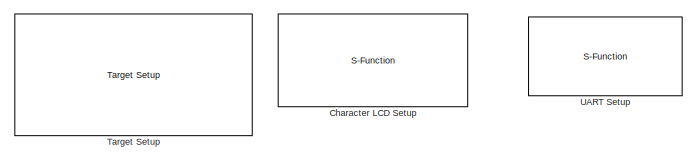
[diagram: root canvas - part 1/5, top center region]
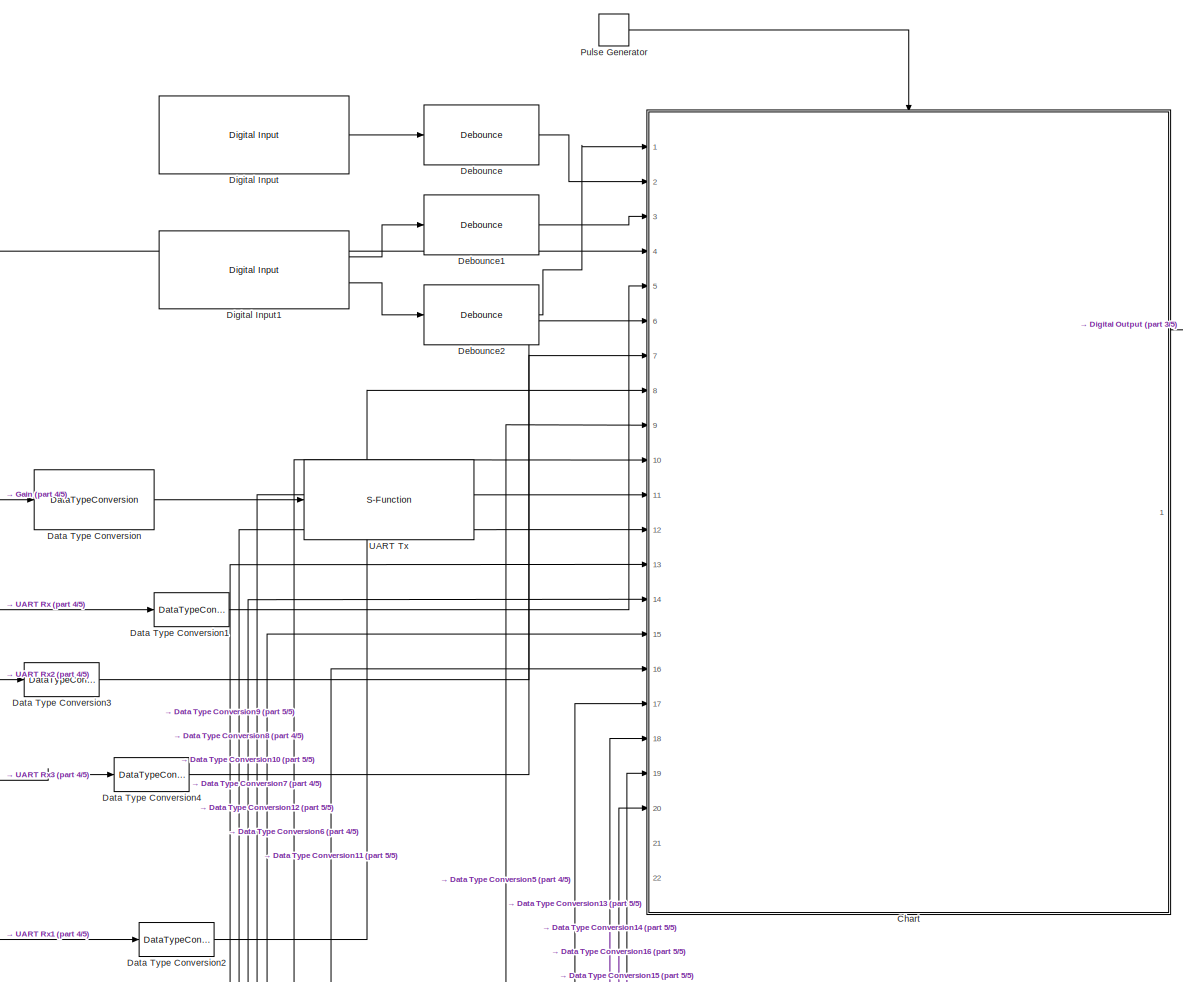
[diagram: root canvas - part 2/5, top center region]
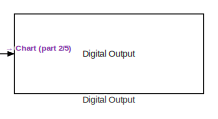
[diagram: root canvas - part 3/5, top right region]
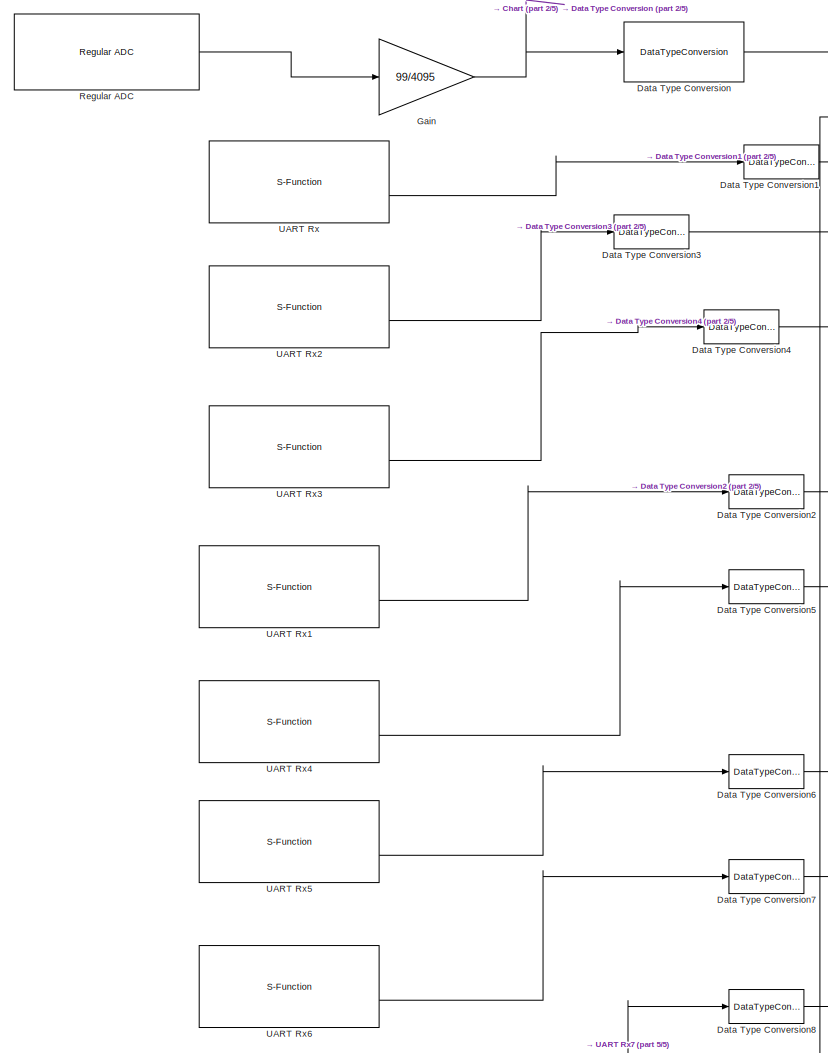
[diagram: root canvas - part 4/5, middle left region]
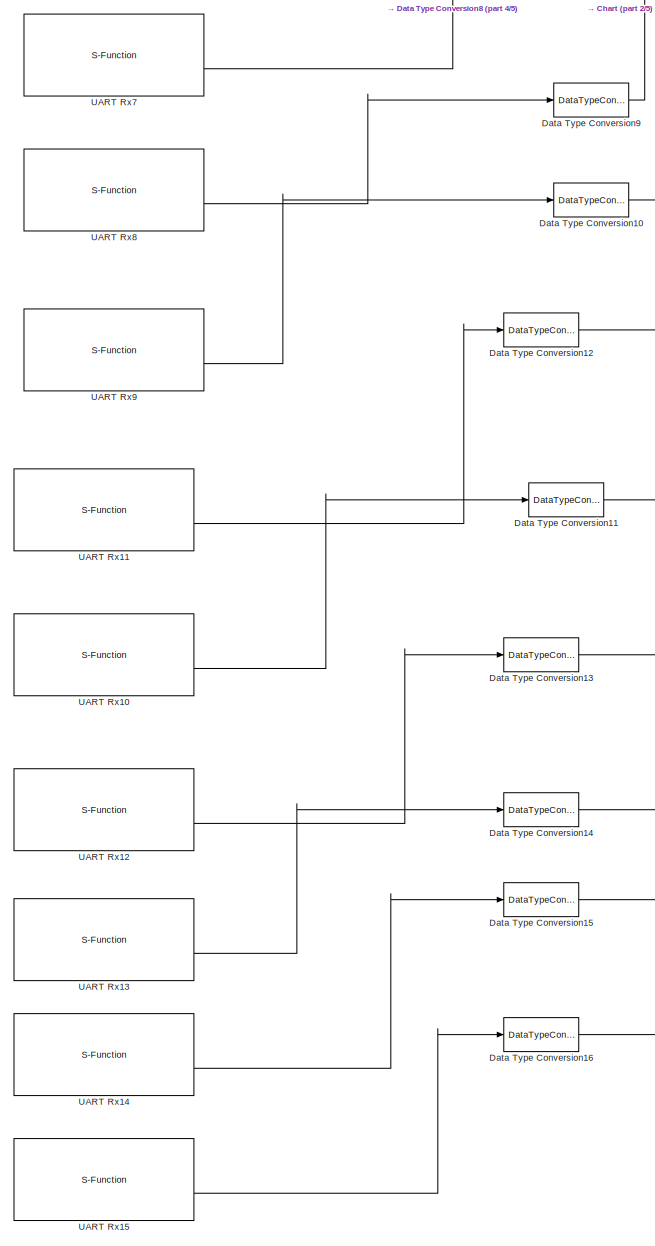
[diagram: root canvas - part 5/5, bottom left region]
MODEL slx_6292fe6bb9c7
KIND model
CONFIG AbsTol = auto
CONFIG EnableMultiTasking = off
CONFIG FixedStep = auto
CONFIG MaxStep = auto
CONFIG MinStep = auto
CONFIG PreLoadFcn = waijung.modelPreload; % Required for working with Waijung Blockset. Do not remove.
CONFIG RelTol = 1e-3
CONFIG SampleTimeConstraint = Unconstrained
CONFIG Solver = FixedStepDiscrete
CONFIG SolverName = FixedStepDiscrete
CONFIG StartTime = 0.0
CONFIG StopTime = inf
BLOCK [S-Function] Character LCD Setup
  EnableBusSupport = off
  FunctionName = amg_clcd
  Parameters = module,configuration,inputtypearray,outputtypearray,confstr,sampletime,sampletimestr,blockid
  Ports = []
  SFcnIsStateOwnerBlock = off
  SFunctionDeploymentMode = off
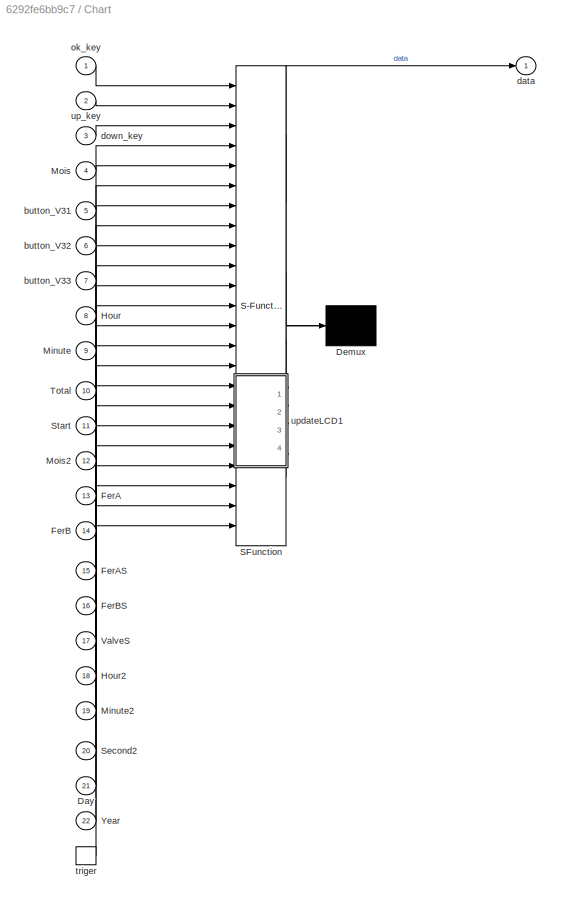
BLOCK [SubSystem] Chart
  ErrorFcn = Stateflow.Translate.translate
  PermitHierarchicalResolution = ExplicitOnly
  Ports = [22, 1, 0, 1]
  RequestExecContextInheritance = off
  SFBlockType = Chart
  TreatAsAtomicUnit = on
  Variant = off
BLOCK [Demux] Chart/ Demux 
  Outputs = 1
  Ports = [1, 1]
BLOCK [S-Function] Chart/ SFunction 
  EnableBusSupport = on
  FunctionName = sf_sfun
  PortCounts = [23 6]
  Ports = [23, 6]
  SFcnIsStateOwnerBlock = off
  SFunctionDeploymentMode = off
  Tag = Stateflow S-Function Project2 1
BLOCK [Inport] Chart/Day
  IconDisplay = Port number
  Port = 21
BLOCK [Inport] Chart/FerA
  IconDisplay = Port number
  Port = 13
BLOCK [Inport] Chart/FerAS
  IconDisplay = Port number
  Port = 15
BLOCK [Inport] Chart/FerB
  IconDisplay = Port number
  Port = 14
BLOCK [Inport] Chart/FerBS
  IconDisplay = Port number
  Port = 16
BLOCK [Inport] Chart/Hour
  IconDisplay = Port number
  Port = 8
BLOCK [Inport] Chart/Hour2
  IconDisplay = Port number
  Port = 18
BLOCK [Inport] Chart/Minute
  IconDisplay = Port number
  Port = 9
BLOCK [Inport] Chart/Minute2
  IconDisplay = Port number
  Port = 19
BLOCK [Inport] Chart/Mois
  IconDisplay = Port number
  Port = 4
BLOCK [Inport] Chart/Mois2
  IconDisplay = Port number
  Port = 12
BLOCK [Inport] Chart/Second2
  IconDisplay = Port number
  Port = 20
BLOCK [Inport] Chart/Start
  IconDisplay = Port number
  Port = 11
BLOCK [Inport] Chart/Total
  IconDisplay = Port number
  Port = 10
BLOCK [Inport] Chart/ValveS
  IconDisplay = Port number
  Port = 17
BLOCK [Inport] Chart/Year
  IconDisplay = Port number
  Port = 22
BLOCK [Inport] Chart/button_V31
  IconDisplay = Port number
  Port = 5
BLOCK [Inport] Chart/button_V32
  IconDisplay = Port number
  Port = 6
BLOCK [Inport] Chart/button_V33
  IconDisplay = Port number
  Port = 7
BLOCK [Outport] Chart/data
  IconDisplay = Port number
BLOCK [Inport] Chart/down_key
  IconDisplay = Port number
  Port = 3
BLOCK [Inport] Chart/ok_key
  IconDisplay = Port number
BLOCK [TriggerPort] Chart/triger
  Ports = [0, 1]
  ShowOutputPort = on
  StatesWhenEnabling = held
  VariantControl = (inherit)
BLOCK [Inport] Chart/up_key
  IconDisplay = Port number
  Port = 2
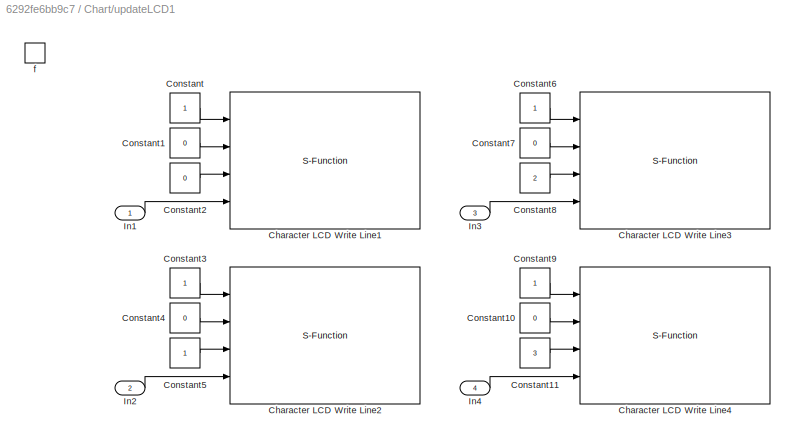
BLOCK [SubSystem] Chart/updateLCD1
  Ports = [4, 0, 0, 1]
  PreDeleteFcn = Stateflow.SLINSF.SimulinkMan.removePreDeleteFcn
  RequestExecContextInheritance = off
  UndoDeleteFcn = Stateflow.SLINSF.SimulinkMan.restorePreDeleteFcn
  Variant = off
BLOCK [S-Function] Chart/updateLCD1/Character LCD Write Line1
  EnableBusSupport = off
  FunctionName = amg_clcd
  Parameters = module,configuration,inputtypearray,outputtypearray,confstr,sampletime,sampletimestr,blockid
  Ports = [4]
  SFcnIsStateOwnerBlock = off
  SFunctionDeploymentMode = off
BLOCK [S-Function] Chart/updateLCD1/Character LCD Write Line2
  EnableBusSupport = off
  FunctionName = amg_clcd
  Parameters = module,configuration,inputtypearray,outputtypearray,confstr,sampletime,sampletimestr,blockid
  Ports = [4]
  SFcnIsStateOwnerBlock = off
  SFunctionDeploymentMode = off
BLOCK [S-Function] Chart/updateLCD1/Character LCD Write Line3
  EnableBusSupport = off
  FunctionName = amg_clcd
  Parameters = module,configuration,inputtypearray,outputtypearray,confstr,sampletime,sampletimestr,blockid
  Ports = [4]
  SFcnIsStateOwnerBlock = off
  SFunctionDeploymentMode = off
BLOCK [S-Function] Chart/updateLCD1/Character LCD Write Line4
  EnableBusSupport = off
  FunctionName = amg_clcd
  Parameters = module,configuration,inputtypearray,outputtypearray,confstr,sampletime,sampletimestr,blockid
  Ports = [4]
  SFcnIsStateOwnerBlock = off
  SFunctionDeploymentMode = off
BLOCK [Constant] Chart/updateLCD1/Constant
BLOCK [Constant] Chart/updateLCD1/Constant1
  Value = 0
BLOCK [Constant] Chart/updateLCD1/Constant10
  Value = 0
BLOCK [Constant] Chart/updateLCD1/Constant11
  Value = 3
BLOCK [Constant] Chart/updateLCD1/Constant2
  Value = 0
BLOCK [Constant] Chart/updateLCD1/Constant3
BLOCK [Constant] Chart/updateLCD1/Constant4
  Value = 0
BLOCK [Constant] Chart/updateLCD1/Constant5
BLOCK [Constant] Chart/updateLCD1/Constant6
BLOCK [Constant] Chart/updateLCD1/Constant7
  Value = 0
BLOCK [Constant] Chart/updateLCD1/Constant8
  Value = 2
BLOCK [Constant] Chart/updateLCD1/Constant9
BLOCK [Inport] Chart/updateLCD1/In1
  IconDisplay = Port number
  OutDataTypeStr = uint8
  PortDimensions = [1 16]
BLOCK [Inport] Chart/updateLCD1/In2
  IconDisplay = Port number
  OutDataTypeStr = uint8
  Port = 2
  PortDimensions = [1 16]
BLOCK [Inport] Chart/updateLCD1/In3
  IconDisplay = Port number
  OutDataTypeStr = uint8
  Port = 3
  PortDimensions = [1 16]
BLOCK [Inport] Chart/updateLCD1/In4
  IconDisplay = Port number
  OutDataTypeStr = uint8
  Port = 4
  PortDimensions = [1 16]
BLOCK [TriggerPort] Chart/updateLCD1/f
  CopyFcn = Stateflow.SLINSF.SimulinkMan.removeBlockPreDeleteFcn
  Ports = []
  PreDeleteFcn = Stateflow.SLINSF.SimulinkMan.unsafePredeleteFcn
  StatesWhenEnabling = held
  TriggerType = function-call
  VariantControl = (inherit)
BLOCK [DataTypeConversion] Data Type Conversion
  RndMeth = Floor
  SaturateOnIntegerOverflow = off
BLOCK [DataTypeConversion] Data Type Conversion1
  RndMeth = Floor
  SaturateOnIntegerOverflow = off
BLOCK [DataTypeConversion] Data Type Conversion10
  RndMeth = Floor
  SaturateOnIntegerOverflow = off
BLOCK [DataTypeConversion] Data Type Conversion11
  RndMeth = Floor
  SaturateOnIntegerOverflow = off
BLOCK [DataTypeConversion] Data Type Conversion12
  RndMeth = Floor
  SaturateOnIntegerOverflow = off
BLOCK [DataTypeConversion] Data Type Conversion13
  RndMeth = Floor
  SaturateOnIntegerOverflow = off
BLOCK [DataTypeConversion] Data Type Conversion14
  RndMeth = Floor
  SaturateOnIntegerOverflow = off
BLOCK [DataTypeConversion] Data Type Conversion15
  RndMeth = Floor
  SaturateOnIntegerOverflow = off
BLOCK [DataTypeConversion] Data Type Conversion16
  RndMeth = Floor
  SaturateOnIntegerOverflow = off
BLOCK [DataTypeConversion] Data Type Conversion2
  RndMeth = Floor
  SaturateOnIntegerOverflow = off
BLOCK [DataTypeConversion] Data Type Conversion3
  RndMeth = Floor
  SaturateOnIntegerOverflow = off
BLOCK [DataTypeConversion] Data Type Conversion4
  RndMeth = Floor
  SaturateOnIntegerOverflow = off
BLOCK [DataTypeConversion] Data Type Conversion5
  RndMeth = Floor
  SaturateOnIntegerOverflow = off
BLOCK [DataTypeConversion] Data Type Conversion6
  RndMeth = Floor
  SaturateOnIntegerOverflow = off
BLOCK [DataTypeConversion] Data Type Conversion7
  RndMeth = Floor
  SaturateOnIntegerOverflow = off
BLOCK [DataTypeConversion] Data Type Conversion8
  RndMeth = Floor
  SaturateOnIntegerOverflow = off
BLOCK [DataTypeConversion] Data Type Conversion9
  RndMeth = Floor
  SaturateOnIntegerOverflow = off
BLOCK [Reference] Debounce  REF=stm32f4_io_lib/Debounce
  Ports = [1, 1]
  SourceBlock = stm32f4_io_lib/Debounce
  SourceProductName = Waijung Blockset
BLOCK [Reference] Debounce1  REF=stm32f4_io_lib/Debounce
  Ports = [1, 1]
  SourceBlock = stm32f4_io_lib/Debounce
  SourceProductName = Waijung Blockset
BLOCK [Reference] Debounce2  REF=stm32f4_io_lib/Debounce
  Ports = [1, 1]
  SourceBlock = stm32f4_io_lib/Debounce
  SourceProductName = Waijung Blockset
BLOCK [Reference] Digital Input  REF=stm32f4_io_lib/Digital Input
  Ports = [0, 1]
  SourceBlock = stm32f4_io_lib/Digital Input
  SourceProductName = Waijung Blockset
  SourceType = stm32f4_digital_input
BLOCK [Reference] Digital Input1  REF=stm32f4_io_lib/Digital Input
  Ports = [0, 2]
  SourceBlock = stm32f4_io_lib/Digital Input
  SourceProductName = Waijung Blockset
  SourceType = stm32f4_digital_input
BLOCK [Reference] Digital Output  REF=stm32f4_io_lib/Digital Output
  Ports = [1]
  SourceBlock = stm32f4_io_lib/Digital Output
  SourceProductName = Waijung Blockset
  SourceType = stm32f4_digital_output
BLOCK [Gain] Gain
  Gain = 99/4095
  OutDataTypeStr = Inherit: Inherit via internal rule
  ParamDataTypeStr = Inherit: Inherit via internal rule
  SaturateOnIntegerOverflow = off
BLOCK [DiscretePulseGenerator] Pulse Generator
  Period = 0.01
  Ports = [0, 1]
  PulseType = Time based
  PulseWidth = 50
BLOCK [Reference] Regular ADC  REF=stm32f4_adc_lib/Regular ADC
  Ports = [0, 1]
  SourceBlock = stm32f4_adc_lib/Regular ADC
  SourceProductName = Waijung Blockset
  SourceType = stm32f4_regular_adc
BLOCK [Reference] Target Setup  REF=stm32f4_device_config_lib/Target Setup
  Ports = []
  Priority = 100
  SourceBlock = stm32f4_device_config_lib/Target Setup
  SourceProductName = Waijung Blockset
  SourceType = stm32f4_target_setup
BLOCK [S-Function] UART Rx
  EnableBusSupport = off
  FunctionName = stm32f4_usart
  Parameters = configuration,uartmodule,transfer,baudrate,inputtype,outputtype,confstr,binheaderarray,binterminatorarray,asciiheader,asciiterminator,bindatalength,packetmode,varname,sampletime,sampletimestr,blockid  <repeated x18 — deduplicated; at blocks: UART Rx, UART Rx1, UART Rx10, UART Rx11, UART Rx12, UART Rx13, UART Rx14, UART Rx15, UART Rx2, UART Rx3, UART Rx4, UART Rx5, UART Rx6, UART Rx7, UART Rx8, UART Rx9, +2 more>
  Ports = [0, 2]
  Priority = 1
  SFcnIsStateOwnerBlock = off
  SFunctionDeploymentMode = off
BLOCK [S-Function] UART Rx1
  EnableBusSupport = off
  FunctionName = stm32f4_usart
  Ports = [0, 2]
  Priority = 1
  SFcnIsStateOwnerBlock = off
  SFunctionDeploymentMode = off
BLOCK [S-Function] UART Rx10
  EnableBusSupport = off
  FunctionName = stm32f4_usart
  Ports = [0, 2]
  Priority = 1
  SFcnIsStateOwnerBlock = off
  SFunctionDeploymentMode = off
BLOCK [S-Function] UART Rx11
  EnableBusSupport = off
  FunctionName = stm32f4_usart
  Ports = [0, 2]
  Priority = 1
  SFcnIsStateOwnerBlock = off
  SFunctionDeploymentMode = off
BLOCK [S-Function] UART Rx12
  EnableBusSupport = off
  FunctionName = stm32f4_usart
  Ports = [0, 2]
  Priority = 1
  SFcnIsStateOwnerBlock = off
  SFunctionDeploymentMode = off
BLOCK [S-Function] UART Rx13
  EnableBusSupport = off
  FunctionName = stm32f4_usart
  Ports = [0, 2]
  Priority = 1
  SFcnIsStateOwnerBlock = off
  SFunctionDeploymentMode = off
BLOCK [S-Function] UART Rx14
  EnableBusSupport = off
  FunctionName = stm32f4_usart
  Ports = [0, 2]
  Priority = 1
  SFcnIsStateOwnerBlock = off
  SFunctionDeploymentMode = off
BLOCK [S-Function] UART Rx15
  EnableBusSupport = off
  FunctionName = stm32f4_usart
  Ports = [0, 2]
  Priority = 1
  SFcnIsStateOwnerBlock = off
  SFunctionDeploymentMode = off
BLOCK [S-Function] UART Rx2
  EnableBusSupport = off
  FunctionName = stm32f4_usart
  Ports = [0, 2]
  Priority = 1
  SFcnIsStateOwnerBlock = off
  SFunctionDeploymentMode = off
BLOCK [S-Function] UART Rx3
  EnableBusSupport = off
  FunctionName = stm32f4_usart
  Ports = [0, 2]
  Priority = 1
  SFcnIsStateOwnerBlock = off
  SFunctionDeploymentMode = off
BLOCK [S-Function] UART Rx4
  EnableBusSupport = off
  FunctionName = stm32f4_usart
  Ports = [0, 2]
  Priority = 1
  SFcnIsStateOwnerBlock = off
  SFunctionDeploymentMode = off
BLOCK [S-Function] UART Rx5
  EnableBusSupport = off
  FunctionName = stm32f4_usart
  Ports = [0, 2]
  Priority = 1
  SFcnIsStateOwnerBlock = off
  SFunctionDeploymentMode = off
BLOCK [S-Function] UART Rx6
  EnableBusSupport = off
  FunctionName = stm32f4_usart
  Ports = [0, 2]
  Priority = 1
  SFcnIsStateOwnerBlock = off
  SFunctionDeploymentMode = off
BLOCK [S-Function] UART Rx7
  EnableBusSupport = off
  FunctionName = stm32f4_usart
  Ports = [0, 2]
  Priority = 1
  SFcnIsStateOwnerBlock = off
  SFunctionDeploymentMode = off
BLOCK [S-Function] UART Rx8
  EnableBusSupport = off
  FunctionName = stm32f4_usart
  Ports = [0, 2]
  Priority = 1
  SFcnIsStateOwnerBlock = off
  SFunctionDeploymentMode = off
BLOCK [S-Function] UART Rx9
  EnableBusSupport = off
  FunctionName = stm32f4_usart
  Ports = [0, 2]
  Priority = 1
  SFcnIsStateOwnerBlock = off
  SFunctionDeploymentMode = off
BLOCK [S-Function] UART Setup
  EnableBusSupport = off
  FunctionName = stm32f4_usart
  Ports = []
  Priority = 1
  SFcnIsStateOwnerBlock = off
  SFunctionDeploymentMode = off
BLOCK [S-Function] UART Tx
  EnableBusSupport = off
  FunctionName = stm32f4_usart
  Ports = [1]
  Priority = 1
  SFcnIsStateOwnerBlock = off
  SFunctionDeploymentMode = off
LINE Chart:1 -> Digital Output:1
LINE Data Type Conversion10:1 -> Chart:14
LINE Data Type Conversion11:1 -> Chart:16
LINE Data Type Conversion12:1 -> Chart:15
LINE Data Type Conversion13:1 -> Chart:17
LINE Data Type Conversion14:1 -> Chart:18
LINE Data Type Conversion15:1 -> Chart:19
LINE Data Type Conversion16:1 -> Chart:20
LINE Data Type Conversion1:1 -> Chart:5
LINE Data Type Conversion2:1 -> Chart:8
LINE Data Type Conversion3:1 -> Chart:6
LINE Data Type Conversion4:1 -> Chart:7
LINE Data Type Conversion5:1 -> Chart:9
LINE Data Type Conversion6:1 -> Chart:10
LINE Data Type Conversion7:1 -> Chart:11
LINE Data Type Conversion8:1 -> Chart:12
LINE Data Type Conversion9:1 -> Chart:13
LINE Data Type Conversion:1 -> UART Tx:1
LINE Debounce1:1 -> Chart:3
LINE Debounce2:1 -> Chart:1
LINE Debounce:1 -> Chart:2
LINE Digital Input1:1 -> Debounce1:1
LINE Digital Input1:2 -> Debounce2:1
LINE Digital Input:1 -> Debounce:1
NET Gain:1 -> Chart:4, Data Type Conversion:1
LINE Pulse Generator:1 -> Chart:trigger
LINE Regular ADC:1 -> Gain:1
LINE UART Rx10:2 -> Data Type Conversion11:1
LINE UART Rx11:2 -> Data Type Conversion12:1
LINE UART Rx12:2 -> Data Type Conversion13:1
LINE UART Rx13:2 -> Data Type Conversion14:1
LINE UART Rx14:2 -> Data Type Conversion15:1
LINE UART Rx15:2 -> Data Type Conversion16:1
LINE UART Rx1:2 -> Data Type Conversion2:1
LINE UART Rx2:2 -> Data Type Conversion3:1
LINE UART Rx3:2 -> Data Type Conversion4:1
LINE UART Rx4:2 -> Data Type Conversion5:1
LINE UART Rx5:2 -> Data Type Conversion6:1
LINE UART Rx6:2 -> Data Type Conversion7:1
LINE UART Rx7:2 -> Data Type Conversion8:1
LINE UART Rx8:2 -> Data Type Conversion9:1
LINE UART Rx9:2 -> Data Type Conversion10:1
LINE UART Rx:2 -> Data Type Conversion1:1
note: NET lines group one-source signal fan-out (src -> all destinations, sorted); 1:1 wires keep LINE
CHART Chart states=56 transitions=60
  STATE_LABEL 'outstr = setLcdLine1(option)'
  STATE_LABEL "SCRIPT:\nfunction outstr = setLcdLine1(option)\n\nswitch option\n    case 0             %0123456789ABCDEF\n        outstr = uint8('                ');\n    case 1  \n        outstr = uint8('  SMF-AUTOMATIC ');\n    case 2 \n        outstr = uint8('>MAIN SCREEN    ');\n    case 21 \n        outstr = uint8(' MAIN SCREEN    ');\n    case 3 \n        outstr = uint8('>MANUAL SCREEN  ');\n    case 31 \n        outstr ...<+490ch>"
  STATE_LABEL 'Initialization'
  STATE_LABEL 'outstr = setLcdLine2(option)'
  STATE_LABEL "SCRIPT:\nfunction outstr = setLcdLine2(option)\n\nswitch option\n    case 0             %0123456789ABCDEF\n        outstr = uint8('                ');\n    case 1  \n        outstr = uint8(' WATERING SYSTEM');\n    case 2 \n        outstr = uint8(' CONFIG SCREEN  ');\n    case 21 \n        outstr = uint8('>CONFIG SCREEN  ');\n    case 3\n        outstr = uint8(' SET-TIME SCREEN');\n    case 31\n        outstr = ...<+378ch>"
  STATE_LABEL 'NormalOperation'
  STATE_LABEL 'CheckKeyPress'
  STATE_LABEL 'NoKeyPressed\nen: data = 0;\n'
  STATE_LABEL 'UpKeyPressed\nen: data = 1;'
  STATE_LABEL 'Short'
  STATE_LABEL 'Long'
  STATE_LABEL 'Break'
  STATE_LABEL '{UP_KEY_PRESSED;}'
  STATE_LABEL 'after(1,sec)'
  STATE_LABEL 'DownKeyPressed\nen: data = 1;\n'
  STATE_LABEL 'Short'
  STATE_LABEL 'Long'
  STATE_LABEL 'Break'
  STATE_LABEL '{DOWN_KEY_PRESSED;}'
  STATE_LABEL 'after(1,sec)'
  STATE_LABEL 'OkKeyPressed\nen: data = 1;'
  STATE_LABEL 'Short'
  STATE_LABEL '{OK_KEY_PRESSED;}'
  STATE_LABEL '[up_key == 1]'
  STATE_LABEL '[up_key == 0]'
  STATE_LABEL '[down_key == 1]'
  STATE_LABEL '[down_key == 0]'
  STATE_LABEL '[ok_key == 1]'
  STATE_LABEL '[ok_key == 0]'
  STATE_LABEL 'MenuDisplay'
  STATE_LABEL 'Screen1\nen: lcd_line1 = setLcdLine1(1);\nen: lcd_line2 = setLcdLine2(1);\nen: lcd_line3 = setLcdLine3(1);\nen: lcd_line4 = setLcdLine4(1);\nen: updateLCD1(lcd_line1,lcd_line2,lcd_line3,lcd_line4);'
  STATE_LABEL 'Screen2\nen: lcd_line1 = setLcdLine1(2);\nen: lcd_line2 = setLcdLine2(2);\nen: lcd_line3 = setLcdLine3(2);\nen: lcd_line4 = setLcdLine4(2);\nen: updateLCD1(lcd_line1,lcd_line2,lcd_line3,lcd_line4);'
  STATE_LABEL 'Screen4\nen: lcd_line1 = setLcdLine1(4);\nen: TotalDate();\nen: StartDate();\nen: lcd_line4 = setLcdLine4(0);\nen: updateLCD1(lcd_line1,lcd_line2,lcd_line3,lcd_line4);'
  STATE_LABEL 'Screen21\nen: lcd_line1 = setLcdLine1(21);\nen: lcd_line2 = setLcdLine2(21);\nen: lcd_line3 = setLcdLine3(2);\nen: lcd_line4 = setLcdLine4(2);\nen: updateLCD1(lcd_line1,lcd_line2,lcd_line3,lcd_line4);'
  STATE_LABEL 'Screen5\nen: lcd_line1 = setLcdLine1(5);\nen: lcd_line2 = setLcdLine2(5);\nen: SetTimeHH();\nen: SetTimeMM();\nen: updateLCD1(lcd_line1,lcd_line2,lcd_line3,lcd_line4);'
  STATE_LABEL 'Screen51\nen: MoisSlide();\nen: FerASec();\nen: FerBSec();\nen: lcd_line4 = setLcdLine4(0);\nen: updateLCD1(lcd_line1,lcd_line2,lcd_line3,lcd_line4);'
  STATE_LABEL 'Screen22\nen: lcd_line1 = setLcdLine1(21);\nen: lcd_line2 = setLcdLine2(2);\nen: lcd_line3 = setLcdLine3(21);\nen: lcd_line4 = setLcdLine4(2);\nen: updateLCD1(lcd_line1,lcd_line2,lcd_line3,lcd_line4);'
  STATE_LABEL 'Screen6\nen: lcd_line1 = setLcdLine1(6);\nen: SetMois();\nen: FerAStatus();\nen: FerBStatus();\nen: updateLCD1(lcd_line1,lcd_line2,lcd_line3,lcd_line4);'
  STATE_LABEL 'Screen61\nen: ValveStatus();\nen: lcd_line2 = setLcdLine2(0);\nen: lcd_line3 = setLcdLine3(0);\nen: lcd_line4 = setLcdLine4(0);\nen: updateLCD1(lcd_line1,lcd_line2,lcd_line3,lcd_line4);'
  STATE_LABEL 'Screen23\nen: lcd_line1 = setLcdLine1(21);\nen: lcd_line2 = setLcdLine2(2);\nen: lcd_line3 = setLcdLine3(2);\nen: lcd_line4 = setLcdLine4(21);\nen: updateLCD1(lcd_line1,lcd_line2,lcd_line3,lcd_line4);'
